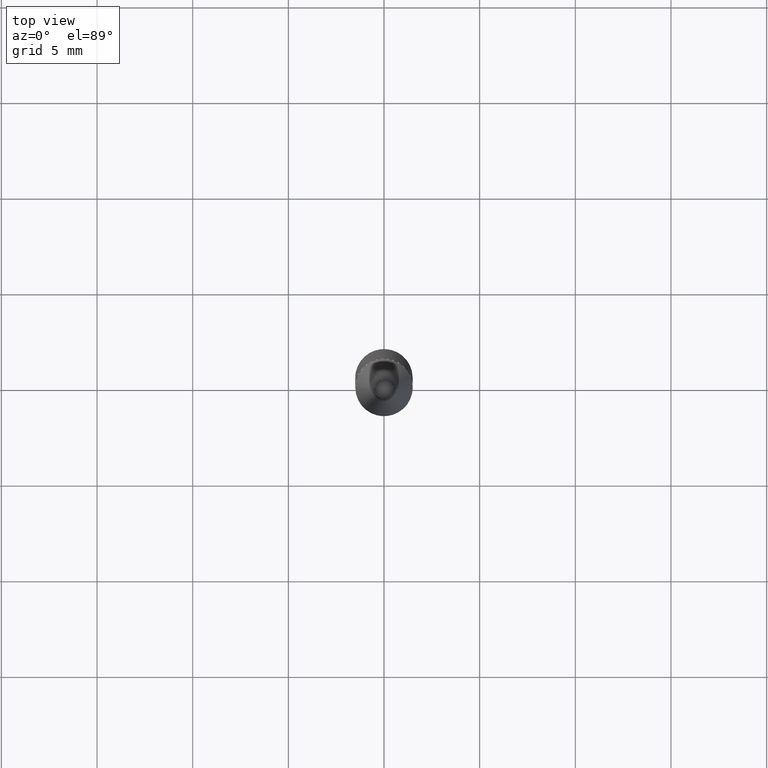
[diagram: clean part render]
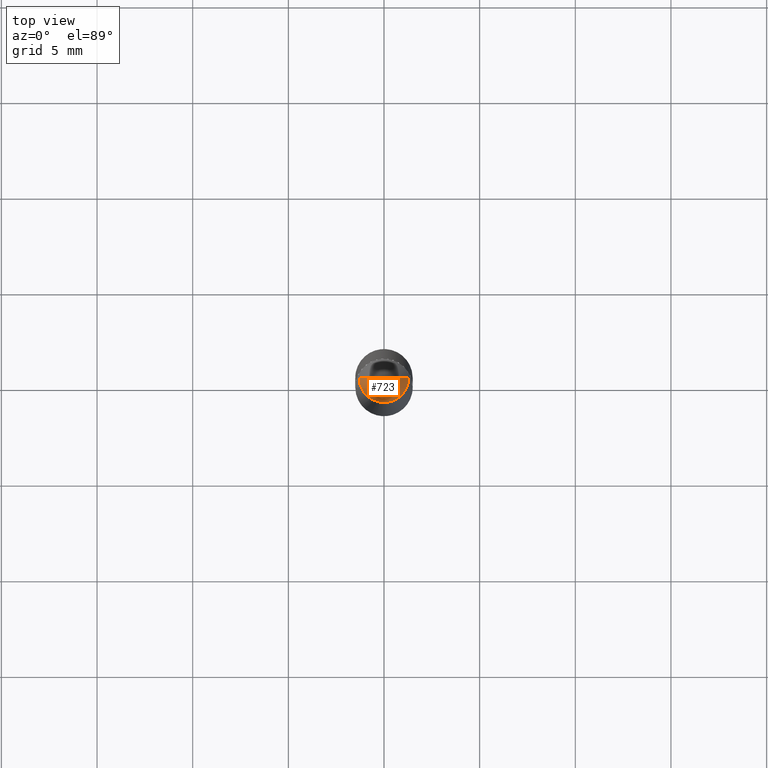
[diagram: same view with one face highlighted and labeled with its STEP entity id]
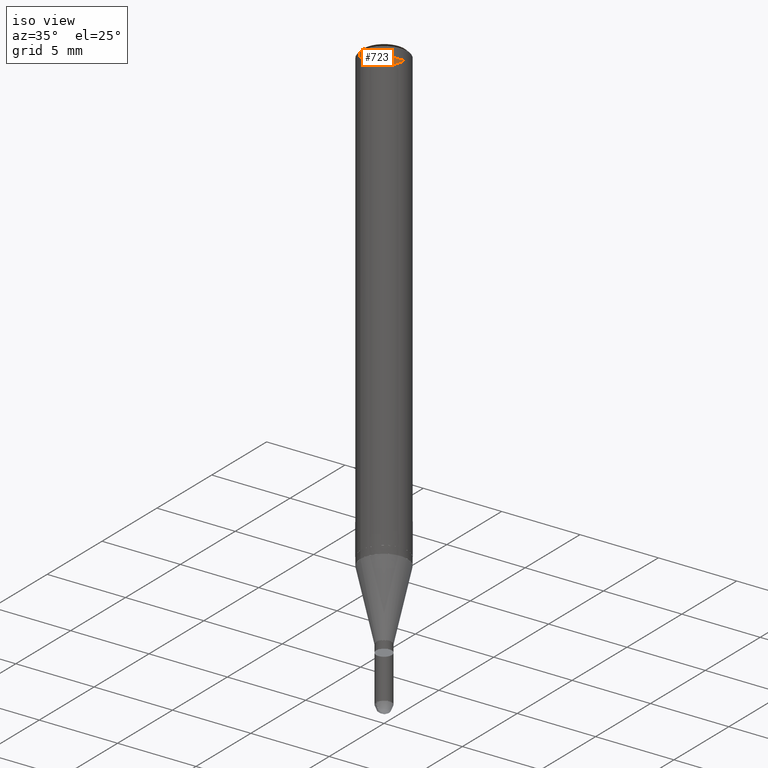
[diagram: same view with one face highlighted and labeled with its STEP entity id]
A machine part, top view. The second image highlights one B-rep face of the part: STEP entity #723.
A second angle (iso view) of the same face is appended — the face is thin or edge-on in the first view.
In plain terms, the highlighted face is a freeform B-spline surface patch.
Its self-contained STEP definition (entity closure, byte-faithful):
#326=CARTESIAN_POINT('',(1.3,0.0,29.0));
#330=CARTESIAN_POINT('',(-1.3,0.0,29.0));
#331=CARTESIAN_POINT('',(0.0,0.0,29.0));
#344=CARTESIAN_POINT('',(-1.3,-1.3,29.0));
#345=CARTESIAN_POINT('',(0.0,-1.3,29.0));
#346=CARTESIAN_POINT('',(1.3,-1.3,29.0));
#708=(
BOUNDED_SURFACE()
B_SPLINE_SURFACE(1,2,(
(#330,#344,#345,#346,#326),
(#331,#331,#331,#331,#331)
), .UNSPECIFIED.,.F.,.F.,.F.)
B_SPLINE_SURFACE_WITH_KNOTS((2,2),(3,2,3),(
0.0,1.0),(
0.0,0.5,1.0), .UNSPECIFIED.)
GEOMETRIC_REPRESENTATION_ITEM()
RATIONAL_B_SPLINE_SURFACE(((1.0,0.707106781187,1.0,0.707106781187,1.0),
(1.0,0.707106781187,1.0,0.707106781187,1.0)
))
REPRESENTATION_ITEM('')
SURFACE()
);
#709=(
BOUNDED_CURVE()
B_SPLINE_CURVE(2,(#326,#346,#345,#344,#330),.UNSPECIFIED.,.F.,.F.)
B_SPLINE_CURVE_WITH_KNOTS((3,2,3),
(0.0,0.5,1.0),.UNSPECIFIED.)
CURVE()
GEOMETRIC_REPRESENTATION_ITEM()
RATIONAL_B_SPLINE_CURVE((1.0,0.707106781187,1.0,0.707106781187,1.0))
REPRESENTATION_ITEM('')
);
#710=(
BOUNDED_CURVE()
B_SPLINE_CURVE(1,(#330,#331),.UNSPECIFIED.,.F.,.F.)
B_SPLINE_CURVE_WITH_KNOTS((2,2),
(0.0,1.0),.UNSPECIFIED.)
CURVE()
GEOMETRIC_REPRESENTATION_ITEM()
RATIONAL_B_SPLINE_CURVE((1.0,1.0))
REPRESENTATION_ITEM('')
);
#711=(
BOUNDED_CURVE()
B_SPLINE_CURVE(1,(#331,#326),.UNSPECIFIED.,.F.,.F.)
B_SPLINE_CURVE_WITH_KNOTS((2,2),
(0.0,1.0),.UNSPECIFIED.)
CURVE()
GEOMETRIC_REPRESENTATION_ITEM()
RATIONAL_B_SPLINE_CURVE((1.0,1.0))
REPRESENTATION_ITEM('')
);
#712=VERTEX_POINT('',#326);
#713=VERTEX_POINT('',#330);
#714=VERTEX_POINT('',#331);
#715=EDGE_CURVE('',#712,#713,#709,.T.);
#716=EDGE_CURVE('',#713,#714,#710,.T.);
#717=EDGE_CURVE('',#714,#712,#711,.T.);
#718=ORIENTED_EDGE('',*,*,#715,.T.);
#719=ORIENTED_EDGE('',*,*,#716,.T.);
#720=ORIENTED_EDGE('',*,*,#717,.T.);
#721=EDGE_LOOP('',(#718,#719,#720));
#722=FACE_OUTER_BOUND('',#721,.T.);
#723=ADVANCED_FACE('',(#722),#708,.T.);